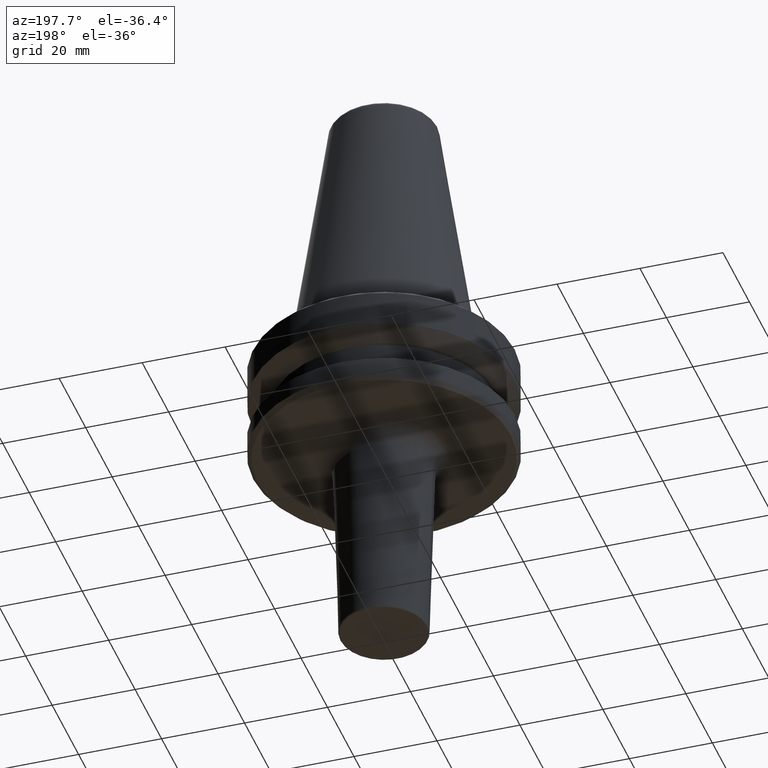
[diagram: clean part render]
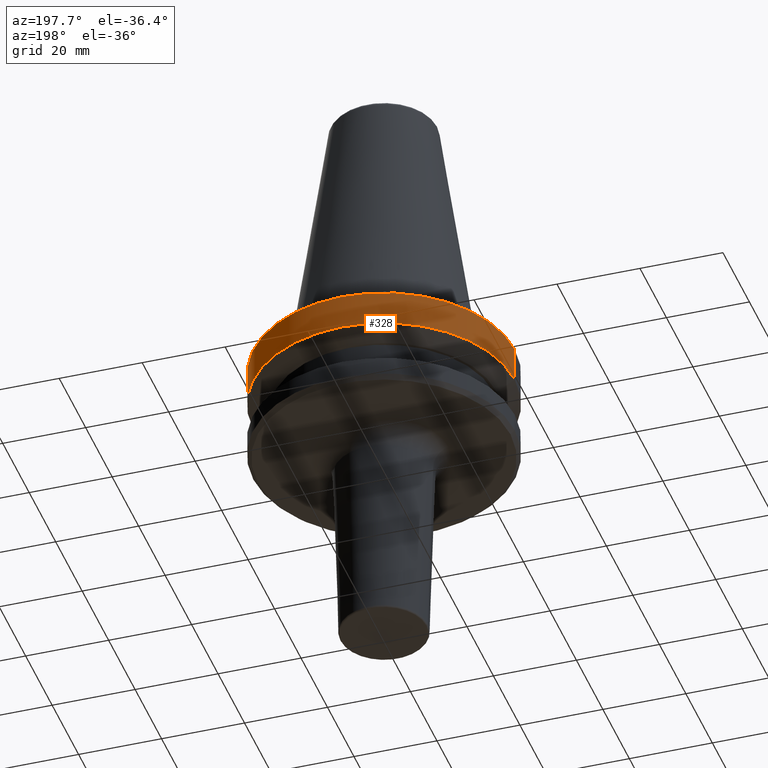
[diagram: same view with one face highlighted and labeled with its STEP entity id]
A machine part, auxiliary view. The second image highlights one B-rep face of the part: STEP entity #328.
In plain terms, the highlighted cylindrical surface (partial cylindrical patch) has radius 31.5 mm, axis along (-0, -0, 1).
Its self-contained STEP definition (entity closure, byte-faithful):
#40 = DIRECTION ( 'NONE',  ( -0.0000000000000000000, -0.0000000000000000000, 1.000000000000000000 ) ) ;
#45 = CIRCLE ( 'NONE', #660, 31.50000000000008500 ) ;
#78 = AXIS2_PLACEMENT_3D ( 'NONE', #908, #358, #316 ) ;
#83 = VERTEX_POINT ( 'NONE', #286 ) ;
#118 = CIRCLE ( 'NONE', #779, 31.50000000000008500 ) ;
#141 = VERTEX_POINT ( 'NONE', #857 ) ;
#184 = DIRECTION ( 'NONE',  ( -0.0000000000000000000, -0.0000000000000000000, 1.000000000000000000 ) ) ;
#212 = CARTESIAN_POINT ( 'NONE',  ( -31.50000000000008500, 3.857637417314172900E-015, 6.357346922996331500 ) ) ;
#251 = VECTOR ( 'NONE', #1001, 1000.000000000000000 ) ;
#260 = ORIENTED_EDGE ( 'NONE', *, *, #907, .F. ) ;
#286 = CARTESIAN_POINT ( 'NONE',  ( 31.50000000000008500, 0.0000000000000000000, -76.99985799368391800 ) ) ;
#289 = ORIENTED_EDGE ( 'NONE', *, *, #330, .F. ) ;
#292 = FACE_OUTER_BOUND ( 'NONE', #733, .T. ) ;
#306 = DIRECTION ( 'NONE',  ( -0.0000000000000000000, -0.0000000000000000000, 1.000000000000000000 ) ) ;
#312 = CARTESIAN_POINT ( 'NONE',  ( -31.50000000000008500, 3.857637417314172900E-015, -68.40000000000046000 ) ) ;
#316 = DIRECTION ( 'NONE',  ( 1.000000000000000000, 0.0000000000000000000, 0.0000000000000000000 ) ) ;
#319 = VERTEX_POINT ( 'NONE', #312 ) ;
#328 = ADVANCED_FACE ( 'NONE', ( #292 ), #654, .T. ) ;
#330 = EDGE_CURVE ( 'NONE', #83, #1021, #873, .T. ) ;
#358 = DIRECTION ( 'NONE',  ( -0.0000000000000000000, -0.0000000000000000000, 1.000000000000000000 ) ) ;
#371 = EDGE_CURVE ( 'NONE', #141, #319, #849, .T. ) ;
#435 = VECTOR ( 'NONE', #184, 1000.000000000000000 ) ;
#447 = CARTESIAN_POINT ( 'NONE',  ( 31.50000000000008500, 0.0000000000000000000, 6.357346922996331500 ) ) ;
#625 = ORIENTED_EDGE ( 'NONE', *, *, #371, .T. ) ;
#654 = CYLINDRICAL_SURFACE ( 'NONE', #78, 31.50000000000008500 ) ;
#660 = AXIS2_PLACEMENT_3D ( 'NONE', #774, #306, #680 ) ;
#680 = DIRECTION ( 'NONE',  ( 1.000000000000000000, 0.0000000000000000000, 0.0000000000000000000 ) ) ;
#716 = EDGE_CURVE ( 'NONE', #83, #141, #118, .T. ) ;
#733 = EDGE_LOOP ( 'NONE', ( #956, #625, #260, #289 ) ) ;
#774 = CARTESIAN_POINT ( 'NONE',  ( 0.0000000000000000000, 0.0000000000000000000, -68.40000000000046000 ) ) ;
#779 = AXIS2_PLACEMENT_3D ( 'NONE', #979, #40, #844 ) ;
#844 = DIRECTION ( 'NONE',  ( 1.000000000000000000, 0.0000000000000000000, 0.0000000000000000000 ) ) ;
#849 = LINE ( 'NONE', #212, #251 ) ;
#857 = CARTESIAN_POINT ( 'NONE',  ( -31.50000000000008500, 3.857637417314172900E-015, -76.99985799368391800 ) ) ;
#873 = LINE ( 'NONE', #447, #435 ) ;
#907 = EDGE_CURVE ( 'NONE', #1021, #319, #45, .T. ) ;
#908 = CARTESIAN_POINT ( 'NONE',  ( 0.0000000000000000000, 0.0000000000000000000, 6.357346922996331500 ) ) ;
#956 = ORIENTED_EDGE ( 'NONE', *, *, #716, .T. ) ;
#979 = CARTESIAN_POINT ( 'NONE',  ( 0.0000000000000000000, 0.0000000000000000000, -76.99985799368391800 ) ) ;
#1001 = DIRECTION ( 'NONE',  ( -0.0000000000000000000, -0.0000000000000000000, 1.000000000000000000 ) ) ;
#1021 = VERTEX_POINT ( 'NONE', #1027 ) ;
#1027 = CARTESIAN_POINT ( 'NONE',  ( 31.50000000000008500, 0.0000000000000000000, -68.40000000000046000 ) ) ;